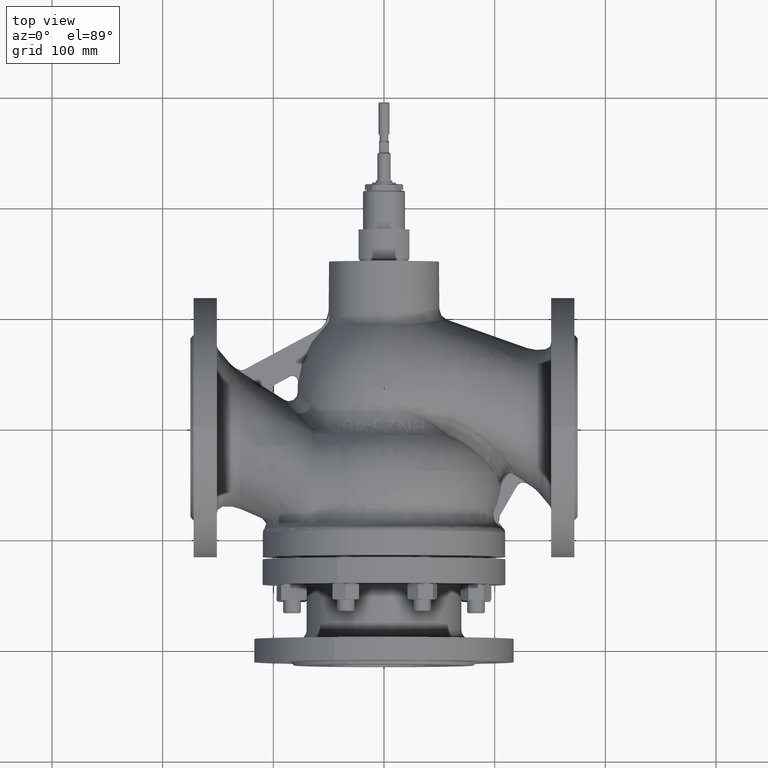
[diagram: clean part render]
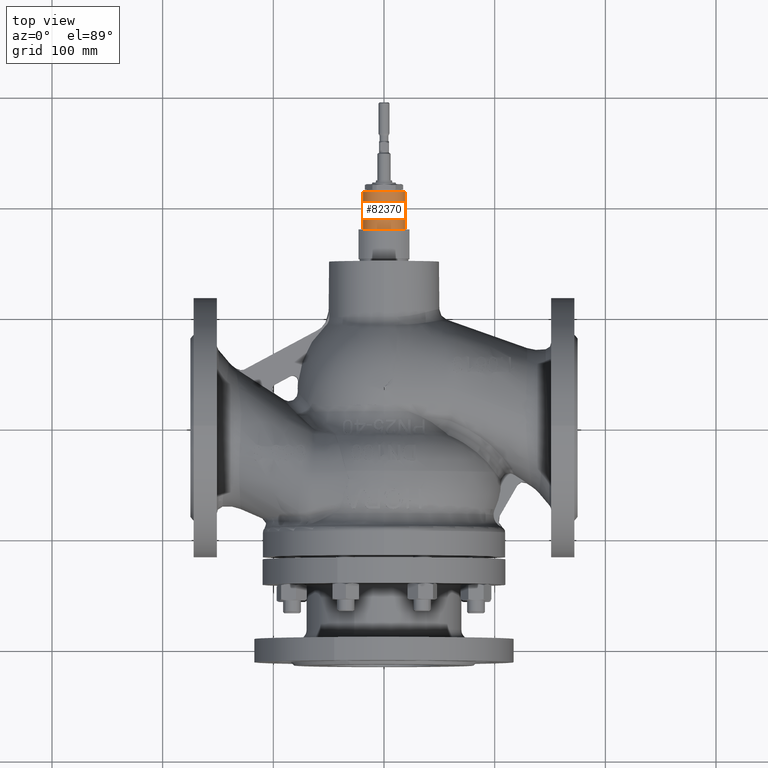
[diagram: same view with one face highlighted and labeled with its STEP entity id]
A machine part, top view. The second image highlights one B-rep face of the part: STEP entity #82370.
In plain terms, the highlighted cylindrical surface (edge-blend (fillet) strip) has radius 19 mm, axis along (-0, 1, -0).
Its self-contained STEP definition (entity closure, byte-faithful):
#1500 = CARTESIAN_POINT ( 'NONE',  ( 18.99999999999997200, 178.9999999999999700, 1.620461672619442800E-014 ) ) ;
#6300 = CARTESIAN_POINT ( 'NONE',  ( -2.775557561562891400E-014, 179.8571428571463300, 1.387778780781445700E-014 ) ) ;
#10521 = CARTESIAN_POINT ( 'NONE',  ( -3.521279167848791600E-014, 213.0000000000000300, 1.387778780781445700E-014 ) ) ;
#24413 = DIRECTION ( 'NONE',  ( 1.000000000000000000, 0.0000000000000000000, 0.0000000000000000000 ) ) ;
#24500 = EDGE_CURVE ( 'NONE', #55506, #103567, #52844, .T. ) ;
#24998 = AXIS2_PLACEMENT_3D ( 'NONE', #39591, #136092, #53455 ) ;
#39510 = AXIS2_PLACEMENT_3D ( 'NONE', #10521, #107039, #24413 ) ;
#39591 = CARTESIAN_POINT ( 'NONE',  ( -2.756271657951968300E-014, 178.9999999999999700, 1.387778780781445700E-014 ) ) ;
#40455 = VECTOR ( 'NONE', #124782, 1000.000000000000000 ) ;
#48203 = CIRCLE ( 'NONE', #24998, 19.00000000000000000 ) ;
#52844 = LINE ( 'NONE', #73161, #158609 ) ;
#53455 = DIRECTION ( 'NONE',  ( -1.000000000000000000, 0.0000000000000000000, 0.0000000000000000000 ) ) ;
#55506 = VERTEX_POINT ( 'NONE', #1500 ) ;
#69256 = CARTESIAN_POINT ( 'NONE',  ( -19.00000000000003200, 179.8571428571463300, 1.387778780781445700E-014 ) ) ;
#70119 = AXIS2_PLACEMENT_3D ( 'NONE', #6300, #75055, #102808 ) ;
#73161 = CARTESIAN_POINT ( 'NONE',  ( 18.99999999999997500, 179.8571428571463300, 1.620461672619442800E-014 ) ) ;
#75055 = DIRECTION ( 'NONE',  ( -2.250022087931829400E-016, 1.000000000000000000, -0.0000000000000000000 ) ) ;
#75982 = EDGE_CURVE ( 'NONE', #137848, #55506, #48203, .T. ) ;
#80480 = ORIENTED_EDGE ( 'NONE', *, *, #75982, .T. ) ;
#82370 = ADVANCED_FACE ( 'NONE', ( #164556 ), #91116, .T. ) ;
#91116 = CYLINDRICAL_SURFACE ( 'NONE', #70119, 19.00000000000000400 ) ;
#102808 = DIRECTION ( 'NONE',  ( -1.000000000000000000, 0.0000000000000000000, 0.0000000000000000000 ) ) ;
#103567 = VERTEX_POINT ( 'NONE', #175790 ) ;
#107039 = DIRECTION ( 'NONE',  ( 2.250022087931826400E-016, -1.000000000000000000, 0.0000000000000000000 ) ) ;
#107435 = EDGE_LOOP ( 'NONE', ( #80480, #163851, #159651, #155744 ) ) ;
#111188 = EDGE_CURVE ( 'NONE', #137848, #170221, #150552, .T. ) ;
#119268 = EDGE_CURVE ( 'NONE', #103567, #170221, #148135, .T. ) ;
#124782 = DIRECTION ( 'NONE',  ( -2.250022087931829400E-016, 1.000000000000000000, -0.0000000000000000000 ) ) ;
#129495 = CARTESIAN_POINT ( 'NONE',  ( -19.00000000000003900, 213.0000000000000300, 1.387778780781445700E-014 ) ) ;
#136092 = DIRECTION ( 'NONE',  ( -2.250022087931829400E-016, 1.000000000000000000, -0.0000000000000000000 ) ) ;
#137848 = VERTEX_POINT ( 'NONE', #174693 ) ;
#148135 = CIRCLE ( 'NONE', #39510, 19.00000000000000400 ) ;
#150552 = LINE ( 'NONE', #69256, #40455 ) ;
#155744 = ORIENTED_EDGE ( 'NONE', *, *, #111188, .F. ) ;
#155829 = DIRECTION ( 'NONE',  ( -2.250022087931829400E-016, 1.000000000000000000, -0.0000000000000000000 ) ) ;
#158609 = VECTOR ( 'NONE', #155829, 1000.000000000000000 ) ;
#159651 = ORIENTED_EDGE ( 'NONE', *, *, #119268, .T. ) ;
#163851 = ORIENTED_EDGE ( 'NONE', *, *, #24500, .T. ) ;
#164556 = FACE_OUTER_BOUND ( 'NONE', #107435, .T. ) ;
#170221 = VERTEX_POINT ( 'NONE', #129495 ) ;
#174693 = CARTESIAN_POINT ( 'NONE',  ( -19.00000000000002800, 178.9999999999999700, 1.387778780781445700E-014 ) ) ;
#175790 = CARTESIAN_POINT ( 'NONE',  ( 18.99999999999996800, 213.0000000000000300, 1.620461672619442800E-014 ) ) ;